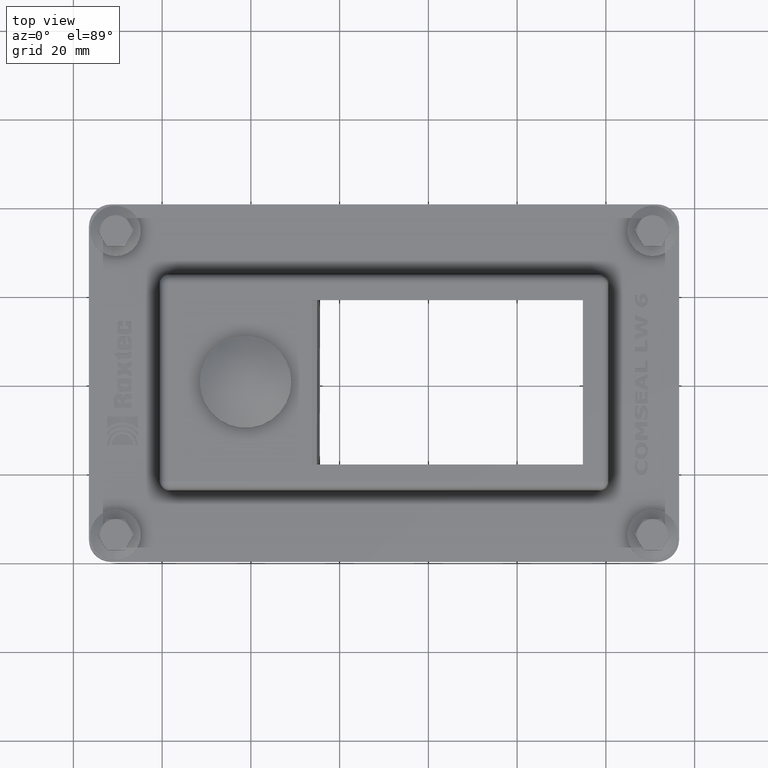
[diagram: clean part render]
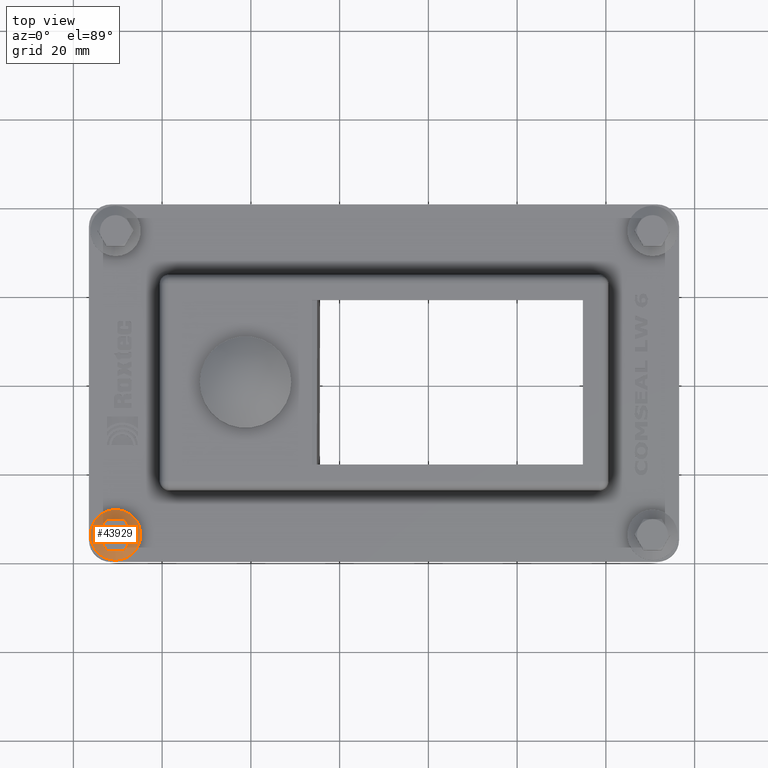
[diagram: same view with one face highlighted and labeled with its STEP entity id]
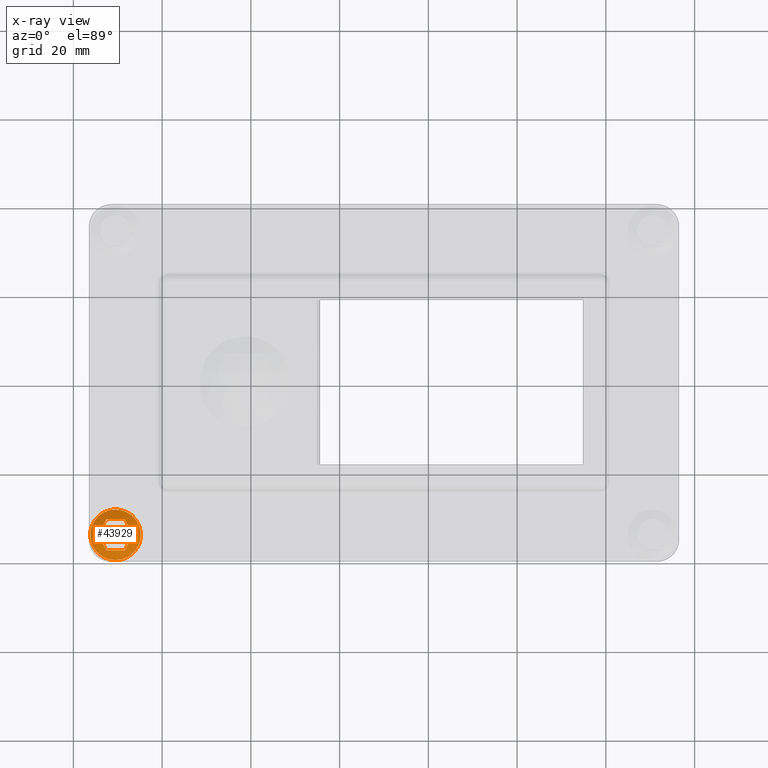
[diagram: x-ray of the same camera — body ghosted, the highlighted face saturated]
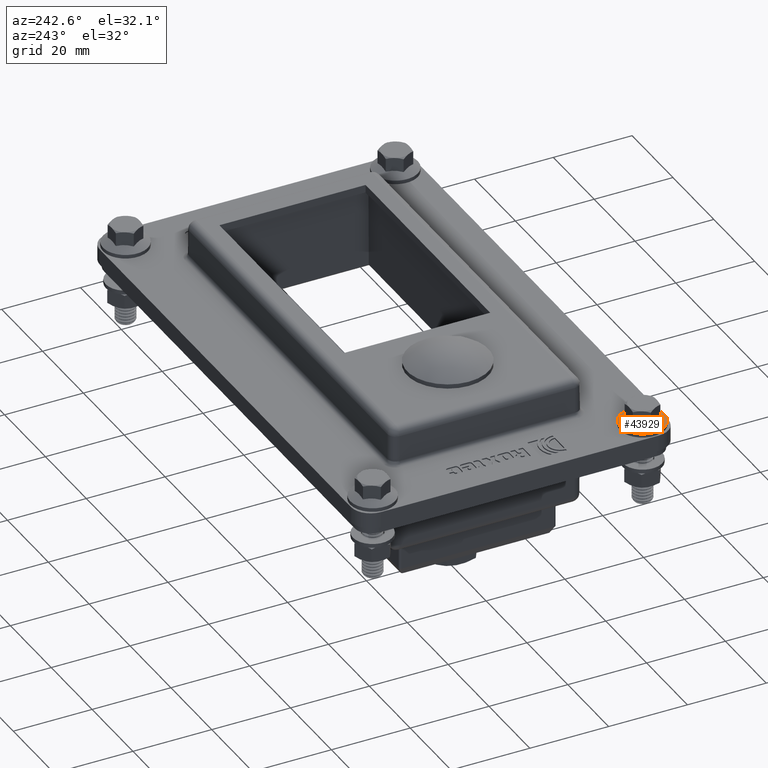
[diagram: same view with one face highlighted and labeled with its STEP entity id]
A machine part, top view. The second image highlights one B-rep face of the part: STEP entity #43929.
The next image is the same camera in x-ray: the body ghosted, the highlighted face saturated — about 0% of this face is hidden behind the body in this view.
A second angle (auxiliary view) of the same face is appended — the face is thin or edge-on in the first view.
In plain terms, the highlighted conical surface has half-angle 60 deg.
Its self-contained STEP definition (entity closure, byte-faithful):
#43787=CARTESIAN_POINT('',(0.0,5.700000000000002,-20.933333333333341));
#43788=VERTEX_POINT('',#43787);
#43789=CARTESIAN_POINT('',(0.0,4.639446E-016,-20.933333333333334));
#43790=DIRECTION('',(0.0,0.0,-1.0));
#43791=DIRECTION('',(0.0,1.0,0.0));
#43792=AXIS2_PLACEMENT_3D('',#43789,#43790,#43791);
#43793=CIRCLE('',#43792,5.700000000000001);
#43794=EDGE_CURVE('',#43788,#43788,#43793,.T.);
#43799=CARTESIAN_POINT('',(0.0,4.639446E-016,-20.933333333333334));
#43800=DIRECTION('',(0.0,0.0,1.0));
#43801=DIRECTION('',(0.0,-1.0,0.0));
#43802=AXIS2_PLACEMENT_3D('',#43799,#43800,#43801);
#43803=CONICAL_SURFACE('',#43802,5.700000000000001,60.000000000000405);
#43804=CARTESIAN_POINT('',(2.020725942163691,-3.499999999999999,-21.890896534380847));
#43805=VERTEX_POINT('',#43804);
#43806=CARTESIAN_POINT('',(-3.635663E-024,-3.5,-22.203503925550496));
#43807=VERTEX_POINT('',#43806);
#43808=CARTESIAN_POINT('',(6.556323604451315,-3.500000000000002,-19.93333333333333));
#43809=CARTESIAN_POINT('',(0.0,-3.500000000000002,-23.272602789173447));
#43810=CARTESIAN_POINT('',(-6.556323604451315,-3.500000000000002,-19.93333333333333));
#43818=(BOUNDED_CURVE()B_SPLINE_CURVE(2,(#43808,#43809,#43810),.UNSPECIFIED.,.F.,.U.)B_SPLINE_CURVE_WITH_KNOTS((3,3),(0.0,1.387646262187206),.UNSPECIFIED.)CURVE()GEOMETRIC_REPRESENTATION_ITEM()RATIONAL_B_SPLINE_CURVE((1.0,2.123443087876838,1.0))REPRESENTATION_ITEM(''));
#43819=EDGE_CURVE('',#43805,#43807,#43818,.T.);
#43820=ORIENTED_EDGE('',*,*,#43819,.F.);
#43821=CARTESIAN_POINT('',(4.041451884327381,-7.997410E-016,-21.890896534380847));
#43822=VERTEX_POINT('',#43821);
#43823=CARTESIAN_POINT('',(6.309250715471196,3.927942796886397,-19.93333333333333));
#43824=CARTESIAN_POINT('',(3.031088913245536,-1.75,-23.272602789173447));
#43825=CARTESIAN_POINT('',(-0.247072888980124,-7.427942796886398,-19.93333333333333));
#43833=(BOUNDED_CURVE()B_SPLINE_CURVE(2,(#43823,#43824,#43825),.UNSPECIFIED.,.F.,.U.)B_SPLINE_CURVE_WITH_KNOTS((3,3),(0.0,1.387646262187206),.UNSPECIFIED.)CURVE()GEOMETRIC_REPRESENTATION_ITEM()RATIONAL_B_SPLINE_CURVE((1.0,2.123443087876838,1.0))REPRESENTATION_ITEM(''));
#43834=EDGE_CURVE('',#43822,#43805,#43833,.T.);
#43835=ORIENTED_EDGE('',*,*,#43834,.F.);
#43836=CARTESIAN_POINT('',(2.020725942163692,3.5,-21.890896534380857));
#43837=VERTEX_POINT('',#43836);
#43838=CARTESIAN_POINT('',(-0.247072888980122,7.427942796886398,-19.93333333333333));
#43839=CARTESIAN_POINT('',(3.031088913245536,1.75,-23.272602789173447));
#43840=CARTESIAN_POINT('',(6.309250715471194,-3.927942796886399,-19.93333333333333));
#43848=(BOUNDED_CURVE()B_SPLINE_CURVE(2,(#43838,#43839,#43840),.UNSPECIFIED.,.F.,.U.)B_SPLINE_CURVE_WITH_KNOTS((3,3),(0.0,1.387646262187206),.UNSPECIFIED.)CURVE()GEOMETRIC_REPRESENTATION_ITEM()RATIONAL_B_SPLINE_CURVE((1.0,2.123443087876838,1.0))REPRESENTATION_ITEM(''));
#43849=EDGE_CURVE('',#43837,#43822,#43848,.T.);
#43850=ORIENTED_EDGE('',*,*,#43849,.F.);
#43851=CARTESIAN_POINT('',(4.286122E-016,3.5,-22.203503925550496));
#43852=VERTEX_POINT('',#43851);
#43853=CARTESIAN_POINT('',(-6.556323604451317,3.5,-19.93333333333333));
#43854=CARTESIAN_POINT('',(0.0,3.5,-23.272602789173447));
#43855=CARTESIAN_POINT('',(6.556323604451317,3.5,-19.93333333333333));
#43863=(BOUNDED_CURVE()B_SPLINE_CURVE(2,(#43853,#43854,#43855),.UNSPECIFIED.,.F.,.U.)B_SPLINE_CURVE_WITH_KNOTS((3,3),(0.0,1.387646262187206),.UNSPECIFIED.)CURVE()GEOMETRIC_REPRESENTATION_ITEM()RATIONAL_B_SPLINE_CURVE((1.0,2.123443087876838,1.0))REPRESENTATION_ITEM(''));
#43864=EDGE_CURVE('',#43852,#43837,#43863,.T.);
#43865=ORIENTED_EDGE('',*,*,#43864,.F.);
#43866=CARTESIAN_POINT('',(-2.020725942163691,3.5,-21.890896534380857));
#43867=VERTEX_POINT('',#43866);
#43868=CARTESIAN_POINT('',(-6.556323604451317,3.5,-19.93333333333333));
#43869=CARTESIAN_POINT('',(0.0,3.5,-23.272602789173447));
#43870=CARTESIAN_POINT('',(6.556323604451317,3.5,-19.93333333333333));
#43878=(BOUNDED_CURVE()B_SPLINE_CURVE(2,(#43868,#43869,#43870),.UNSPECIFIED.,.F.,.U.)B_SPLINE_CURVE_WITH_KNOTS((3,3),(0.0,1.387646262187206),.UNSPECIFIED.)CURVE()GEOMETRIC_REPRESENTATION_ITEM()RATIONAL_B_SPLINE_CURVE((1.0,2.123443087876838,1.0))REPRESENTATION_ITEM(''));
#43879=EDGE_CURVE('',#43867,#43852,#43878,.T.);
#43880=ORIENTED_EDGE('',*,*,#43879,.F.);
#43881=CARTESIAN_POINT('',(-4.041451884327381,1.180673E-016,-21.890896534380847));
#43882=VERTEX_POINT('',#43881);
#43883=CARTESIAN_POINT('',(-6.309250715471196,-3.927942796886395,-19.93333333333333));
#43884=CARTESIAN_POINT('',(-3.031088913245537,1.750000000000002,-23.272602789173447));
#43885=CARTESIAN_POINT('',(0.247072888980123,7.427942796886399,-19.93333333333333));
#43893=(BOUNDED_CURVE()B_SPLINE_CURVE(2,(#43883,#43884,#43885),.UNSPECIFIED.,.F.,.U.)B_SPLINE_CURVE_WITH_KNOTS((3,3),(0.0,1.387646262187206),.UNSPECIFIED.)CURVE()GEOMETRIC_REPRESENTATION_ITEM()RATIONAL_B_SPLINE_CURVE((1.0,2.123443087876838,1.0))REPRESENTATION_ITEM(''));
#43894=EDGE_CURVE('',#43882,#43867,#43893,.T.);
#43895=ORIENTED_EDGE('',*,*,#43894,.F.);
#43896=CARTESIAN_POINT('',(-2.020725942163692,-3.5,-21.890896534380847));
#43897=VERTEX_POINT('',#43896);
#43898=CARTESIAN_POINT('',(0.24707288898012,-7.427942796886397,-19.93333333333333));
#43899=CARTESIAN_POINT('',(-3.031088913245537,-1.749999999999999,-23.272602789173447));
#43900=CARTESIAN_POINT('',(-6.309250715471194,3.927942796886398,-19.93333333333333));
#43908=(BOUNDED_CURVE()B_SPLINE_CURVE(2,(#43898,#43899,#43900),.UNSPECIFIED.,.F.,.U.)B_SPLINE_CURVE_WITH_KNOTS((3,3),(0.0,1.387646262187206),.UNSPECIFIED.)CURVE()GEOMETRIC_REPRESENTATION_ITEM()RATIONAL_B_SPLINE_CURVE((1.0,2.123443087876838,1.0))REPRESENTATION_ITEM(''));
#43909=EDGE_CURVE('',#43897,#43882,#43908,.T.);
#43910=ORIENTED_EDGE('',*,*,#43909,.F.);
#43911=CARTESIAN_POINT('',(6.556323604451315,-3.500000000000002,-19.93333333333333));
#43912=CARTESIAN_POINT('',(0.0,-3.500000000000002,-23.272602789173447));
#43913=CARTESIAN_POINT('',(-6.556323604451315,-3.500000000000002,-19.93333333333333));
#43921=(BOUNDED_CURVE()B_SPLINE_CURVE(2,(#43911,#43912,#43913),.UNSPECIFIED.,.F.,.U.)B_SPLINE_CURVE_WITH_KNOTS((3,3),(0.0,1.387646262187206),.UNSPECIFIED.)CURVE()GEOMETRIC_REPRESENTATION_ITEM()RATIONAL_B_SPLINE_CURVE((1.0,2.123443087876838,1.0))REPRESENTATION_ITEM(''));
#43922=EDGE_CURVE('',#43807,#43897,#43921,.T.);
#43923=ORIENTED_EDGE('',*,*,#43922,.F.);
#43924=EDGE_LOOP('',(#43820,#43835,#43850,#43865,#43880,#43895,#43910,#43923));
#43925=FACE_OUTER_BOUND('',#43924,.T.);
#43926=ORIENTED_EDGE('',*,*,#43794,.T.);
#43927=EDGE_LOOP('',(#43926));
#43928=FACE_BOUND('',#43927,.T.);
#43929=ADVANCED_FACE('',(#43925,#43928),#43803,.T.);